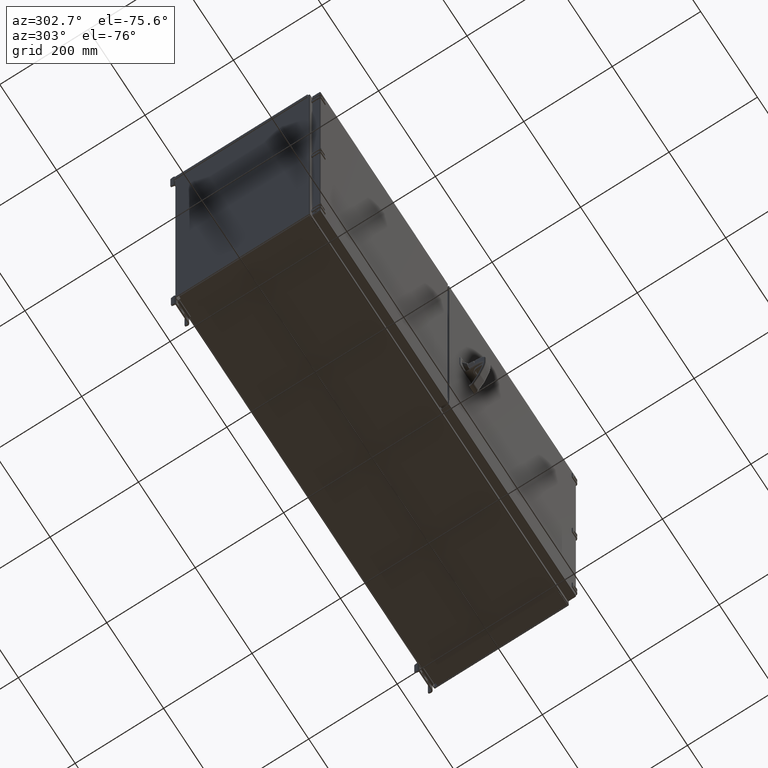
[diagram: clean part render]
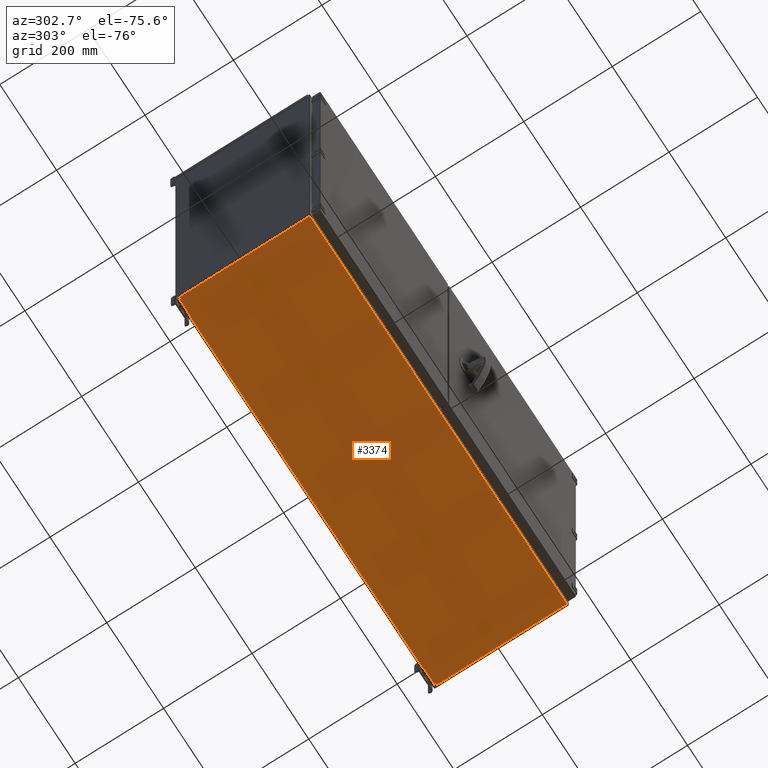
[diagram: same view with one face highlighted and labeled with its STEP entity id]
A machine part, auxiliary view. The second image highlights one B-rep face of the part: STEP entity #3374.
In plain terms, the highlighted planar face has unit normal (0, 0, 1).
Its self-contained STEP definition (entity closure, byte-faithful):
#3374 = ADVANCED_FACE( '', ( #7297 ), #7298, .F. );
#7297 = FACE_OUTER_BOUND( '', #14455, .T. );
#7298 = PLANE( '', #14456 );
#14455 = EDGE_LOOP( '', ( #26362, #26363, #26364, #26365, #26366, #26367, #26368, #26369, #26370, #26371, #26372, #26373, #26374, #26375, #26376, #26377, #26378, #26379, #26380, #26381 ) );
#14456 = AXIS2_PLACEMENT_3D( '', #26382, #26383, #26384 );
#26362 = ORIENTED_EDGE( '', *, *, #36997, .T. );
#26363 = ORIENTED_EDGE( '', *, *, #36998, .T. );
#26364 = ORIENTED_EDGE( '', *, *, #34687, .F. );
#26365 = ORIENTED_EDGE( '', *, *, #36054, .F. );
#26366 = ORIENTED_EDGE( '', *, *, #34674, .F. );
#26367 = ORIENTED_EDGE( '', *, *, #36999, .T. );
#26368 = ORIENTED_EDGE( '', *, *, #36338, .F. );
#26369 = ORIENTED_EDGE( '', *, *, #37000, .T. );
#26370 = ORIENTED_EDGE( '', *, *, #36343, .F. );
#26371 = ORIENTED_EDGE( '', *, *, #34193, .T. );
#26372 = ORIENTED_EDGE( '', *, *, #37001, .T. );
#26373 = ORIENTED_EDGE( '', *, *, #37002, .T. );
#26374 = ORIENTED_EDGE( '', *, *, #37003, .F. );
#26375 = ORIENTED_EDGE( '', *, *, #37004, .F. );
#26376 = ORIENTED_EDGE( '', *, *, #33995, .F. );
#26377 = ORIENTED_EDGE( '', *, *, #37005, .T. );
#26378 = ORIENTED_EDGE( '', *, *, #34166, .F. );
#26379 = ORIENTED_EDGE( '', *, *, #37006, .T. );
#26380 = ORIENTED_EDGE( '', *, *, #37007, .F. );
#26381 = ORIENTED_EDGE( '', *, *, #34010, .T. );
#26382 = CARTESIAN_POINT( '', ( -422.783000000000, -152.796875000000, 0.000000000000000 ) );
#26383 = DIRECTION( '', ( 0.000000000000000, 0.000000000000000, 1.00000000000000 ) );
#26384 = DIRECTION( '', ( 1.00000000000000, 0.000000000000000, 0.000000000000000 ) );
#33995 = EDGE_CURVE( '', #38842, #38844, #38845, .T. );
#34010 = EDGE_CURVE( '', #38871, #38869, #38872, .T. );
#34166 = EDGE_CURVE( '', #39145, #39141, #39147, .T. );
#34193 = EDGE_CURVE( '', #39194, #39195, #39196, .T. );
#34674 = EDGE_CURVE( '', #40054, #40056, #40057, .T. );
#34687 = EDGE_CURVE( '', #40076, #40077, #40078, .T. );
#36054 = EDGE_CURVE( '', #40056, #40076, #42292, .T. );
#36338 = EDGE_CURVE( '', #42705, #42483, #42707, .T. );
#36343 = EDGE_CURVE( '', #39194, #42714, #42715, .T. );
#36997 = EDGE_CURVE( '', #38869, #43612, #43613, .T. );
#36998 = EDGE_CURVE( '', #43612, #40077, #43614, .T. );
#36999 = EDGE_CURVE( '', #40054, #42483, #43615, .T. );
#37000 = EDGE_CURVE( '', #42705, #42714, #43616, .T. );
#37001 = EDGE_CURVE( '', #39195, #43617, #43618, .T. );
#37002 = EDGE_CURVE( '', #43617, #43619, #43620, .T. );
#37003 = EDGE_CURVE( '', #43621, #43619, #43622, .T. );
#37004 = EDGE_CURVE( '', #38844, #43621, #43623, .T. );
#37005 = EDGE_CURVE( '', #38842, #39141, #43624, .T. );
#37006 = EDGE_CURVE( '', #39145, #43625, #43626, .T. );
#37007 = EDGE_CURVE( '', #38871, #43625, #43627, .T. );
#38842 = VERTEX_POINT( '', #46341 );
#38844 = VERTEX_POINT( '', #46344 );
#38845 = LINE( '', #46345, #46346 );
#38869 = VERTEX_POINT( '', #46378 );
#38871 = VERTEX_POINT( '', #46381 );
#38872 = LINE( '', #46382, #46383 );
#39141 = VERTEX_POINT( '', #46983 );
#39145 = VERTEX_POINT( '', #46989 );
#39147 = LINE( '', #46992, #46993 );
#39194 = VERTEX_POINT( '', #47060 );
#39195 = VERTEX_POINT( '', #47061 );
#39196 = LINE( '', #47062, #47063 );
#40054 = VERTEX_POINT( '', #49434 );
#40056 = VERTEX_POINT( '', #49437 );
#40057 = LINE( '', #49438, #49439 );
#40076 = VERTEX_POINT( '', #49491 );
#40077 = VERTEX_POINT( '', #49492 );
#40078 = LINE( '', #49493, #49494 );
#42292 = LINE( '', #54841, #54842 );
#42483 = VERTEX_POINT( '', #55301 );
#42705 = VERTEX_POINT( '', #55934 );
#42707 = LINE( '', #55937, #55938 );
#42714 = VERTEX_POINT( '', #55947 );
#42715 = LINE( '', #55948, #55949 );
#43612 = VERTEX_POINT( '', #58021 );
#43613 = LINE( '', #58022, #58023 );
#43614 = LINE( '', #58024, #58025 );
#43615 = LINE( '', #58026, #58027 );
#43616 = LINE( '', #58028, #58029 );
#43617 = VERTEX_POINT( '', #58030 );
#43618 = LINE( '', #58031, #58032 );
#43619 = VERTEX_POINT( '', #58033 );
#43620 = LINE( '', #58034, #58035 );
#43621 = VERTEX_POINT( '', #58036 );
#43622 = LINE( '', #58037, #58038 );
#43623 = LINE( '', #58039, #58040 );
#43624 = LINE( '', #58041, #58042 );
#43625 = VERTEX_POINT( '', #58043 );
#43626 = LINE( '', #58044, #58045 );
#43627 = LINE( '', #58046, #58047 );
#46341 = CARTESIAN_POINT( '', ( -423.529125000000, 148.142325000000, 0.000000000000000 ) );
#46344 = CARTESIAN_POINT( '', ( -423.531125000000, 148.142325000000, 0.000000000000000 ) );
#46345 = CARTESIAN_POINT( '', ( -423.531125000000, 148.142325000000, 0.000000000000000 ) );
#46346 = VECTOR( '', #62409, 1000.00000000000 );
#46378 = CARTESIAN_POINT( '', ( 448.929125000000, 144.129124999999, 0.000000000000000 ) );
#46381 = CARTESIAN_POINT( '', ( 448.929125000000, 150.479125000000, 0.000000000000000 ) );
#46382 = CARTESIAN_POINT( '', ( 448.929125000000, -152.796875000000, 0.000000000000000 ) );
#46383 = VECTOR( '', #62425, 1000.00000000000 );
#46983 = CARTESIAN_POINT( '', ( 423.529125000000, 148.142325000000, 0.000000000000000 ) );
#46989 = CARTESIAN_POINT( '', ( 423.531125000000, 148.142325000000, 0.000000000000000 ) );
#46992 = CARTESIAN_POINT( '', ( -423.531125000000, 148.142325000000, 0.000000000000000 ) );
#46993 = VECTOR( '', #62558, 1000.00000000000 );
#47060 = CARTESIAN_POINT( '', ( -452.942325000000, -150.479125000000, 0.000000000000000 ) );
#47061 = CARTESIAN_POINT( '', ( -452.942325000000, 144.129124999999, 0.000000000000000 ) );
#47062 = CARTESIAN_POINT( '', ( -452.942325000000, -150.479125000000, 0.000000000000000 ) );
#47063 = VECTOR( '', #62583, 1000.00000000000 );
#49434 = CARTESIAN_POINT( '', ( 422.783000000000, -150.460075000000, 0.000000000000000 ) );
#49437 = CARTESIAN_POINT( '', ( 422.785000000000, -150.460075000000, 0.000000000000000 ) );
#49438 = CARTESIAN_POINT( '', ( 422.785000000000, -150.460075000000, 0.000000000000000 ) );
#49439 = VECTOR( '', #62875, 1000.00000000000 );
#49491 = CARTESIAN_POINT( '', ( 422.785000000000, -150.479125000000, 0.000000000000000 ) );
#49492 = CARTESIAN_POINT( '', ( 452.942325000000, -150.479125000000, 0.000000000000000 ) );
#49493 = CARTESIAN_POINT( '', ( 422.783000000000, -150.479125000000, 0.000000000000000 ) );
#49494 = VECTOR( '', #62882, 1000.00000000000 );
#54841 = CARTESIAN_POINT( '', ( 422.785000000000, -152.796875000000, 0.000000000000000 ) );
#54842 = VECTOR( '', #63911, 1000.00000000000 );
#55301 = CARTESIAN_POINT( '', ( -422.783000000000, -150.460075000000, 0.000000000000000 ) );
#55934 = CARTESIAN_POINT( '', ( -422.785000000000, -150.460075000000, 0.000000000000000 ) );
#55937 = CARTESIAN_POINT( '', ( 422.785000000000, -150.460075000000, 0.000000000000000 ) );
#55938 = VECTOR( '', #64100, 1000.00000000000 );
#55947 = CARTESIAN_POINT( '', ( -422.785000000000, -150.479125000000, 0.000000000000000 ) );
#55948 = CARTESIAN_POINT( '', ( -455.279125000000, -150.479125000000, 0.000000000000000 ) );
#55949 = VECTOR( '', #64106, 1000.00000000000 );
#58021 = CARTESIAN_POINT( '', ( 452.942325000000, 144.129124999999, 0.000000000000000 ) );
#58022 = CARTESIAN_POINT( '', ( -422.783000000000, 144.129124999999, 0.000000000000000 ) );
#58023 = VECTOR( '', #64596, 1000.00000000000 );
#58024 = CARTESIAN_POINT( '', ( 452.942325000000, 144.129124999999, 0.000000000000000 ) );
#58025 = VECTOR( '', #64597, 1000.00000000000 );
#58026 = CARTESIAN_POINT( '', ( 422.783000000000, -150.460075000000, 0.000000000000000 ) );
#58027 = VECTOR( '', #64598, 1000.00000000000 );
#58028 = CARTESIAN_POINT( '', ( -422.785000000000, -152.796875000000, 0.000000000000000 ) );
#58029 = VECTOR( '', #64599, 1000.00000000000 );
#58030 = CARTESIAN_POINT( '', ( -448.929125000000, 144.129124999999, 0.000000000000000 ) );
#58031 = CARTESIAN_POINT( '', ( -422.783000000000, 144.129124999999, 0.000000000000000 ) );
#58032 = VECTOR( '', #64600, 1000.00000000000 );
#58033 = CARTESIAN_POINT( '', ( -448.929125000000, 150.479125000000, 0.000000000000000 ) );
#58034 = CARTESIAN_POINT( '', ( -448.929125000000, -152.796875000000, 0.000000000000000 ) );
#58035 = VECTOR( '', #64601, 1000.00000000000 );
#58036 = CARTESIAN_POINT( '', ( -423.531125000000, 150.479125000000, 0.000000000000000 ) );
#58037 = CARTESIAN_POINT( '', ( 455.279125000000, 150.479125000000, 0.000000000000000 ) );
#58038 = VECTOR( '', #64602, 1000.00000000000 );
#58039 = CARTESIAN_POINT( '', ( -423.531125000000, 150.479125000000, 0.000000000000000 ) );
#58040 = VECTOR( '', #64603, 1000.00000000000 );
#58041 = CARTESIAN_POINT( '', ( -423.529125000000, 148.142325000000, 0.000000000000000 ) );
#58042 = VECTOR( '', #64604, 1000.00000000000 );
#58043 = CARTESIAN_POINT( '', ( 423.531125000000, 150.479125000000, 0.000000000000000 ) );
#58044 = CARTESIAN_POINT( '', ( 423.531125000000, 150.479125000000, 0.000000000000000 ) );
#58045 = VECTOR( '', #64605, 1000.00000000000 );
#58046 = CARTESIAN_POINT( '', ( 455.279125000000, 150.479125000000, 0.000000000000000 ) );
#58047 = VECTOR( '', #64606, 1000.00000000000 );
#62409 = DIRECTION( '', ( -1.00000000000000, 0.000000000000000, 0.000000000000000 ) );
#62425 = DIRECTION( '', ( 0.000000000000000, -1.00000000000000, 0.000000000000000 ) );
#62558 = DIRECTION( '', ( -1.00000000000000, 0.000000000000000, 0.000000000000000 ) );
#62583 = DIRECTION( '', ( 0.000000000000000, 1.00000000000000, 0.000000000000000 ) );
#62875 = DIRECTION( '', ( 1.00000000000000, 0.000000000000000, 0.000000000000000 ) );
#62882 = DIRECTION( '', ( 1.00000000000000, 0.000000000000000, 0.000000000000000 ) );
#63911 = DIRECTION( '', ( 0.000000000000000, -1.00000000000000, 0.000000000000000 ) );
#64100 = DIRECTION( '', ( 1.00000000000000, 0.000000000000000, 0.000000000000000 ) );
#64106 = DIRECTION( '', ( 1.00000000000000, 0.000000000000000, 0.000000000000000 ) );
#64596 = DIRECTION( '', ( 1.00000000000000, 0.000000000000000, 0.000000000000000 ) );
#64597 = DIRECTION( '', ( 0.000000000000000, -1.00000000000000, 0.000000000000000 ) );
#64598 = DIRECTION( '', ( -1.00000000000000, 0.000000000000000, 0.000000000000000 ) );
#64599 = DIRECTION( '', ( -2.37551999449066E-014, -1.00000000000000, 0.000000000000000 ) );
#64600 = DIRECTION( '', ( 1.00000000000000, 0.000000000000000, 0.000000000000000 ) );
#64601 = DIRECTION( '', ( 0.000000000000000, 1.00000000000000, 0.000000000000000 ) );
#64602 = DIRECTION( '', ( -1.00000000000000, -1.82891598306614E-016, 0.000000000000000 ) );
#64603 = DIRECTION( '', ( 0.000000000000000, 1.00000000000000, 0.000000000000000 ) );
#64604 = DIRECTION( '', ( 1.00000000000000, 0.000000000000000, 0.000000000000000 ) );
#64605 = DIRECTION( '', ( 0.000000000000000, 1.00000000000000, 0.000000000000000 ) );
#64606 = DIRECTION( '', ( -1.00000000000000, -1.82891598306614E-016, 0.000000000000000 ) );